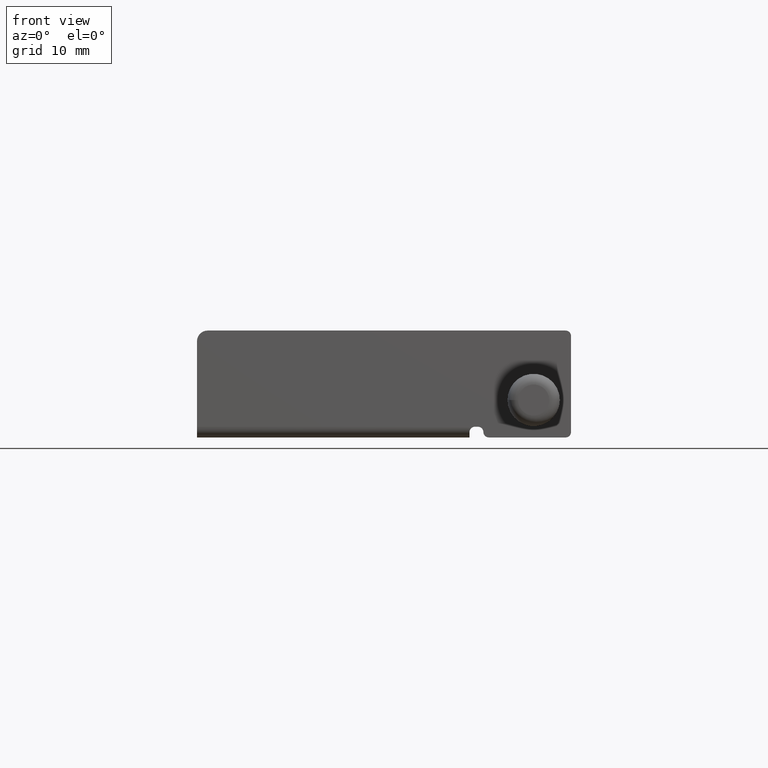
[diagram: clean part render]
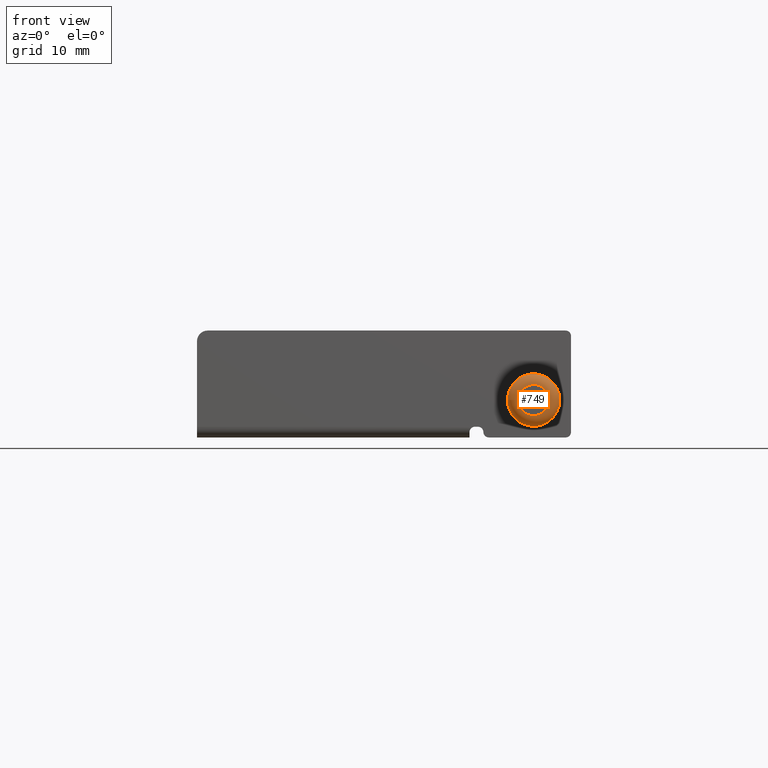
[diagram: same view with one face highlighted and labeled with its STEP entity id]
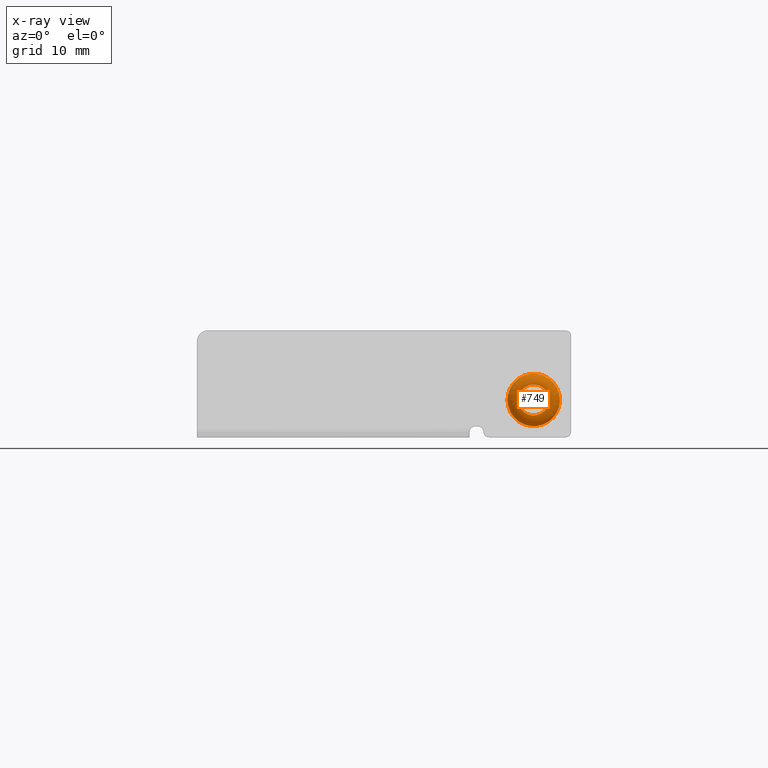
[diagram: x-ray of the same camera — body ghosted, the highlighted face saturated]
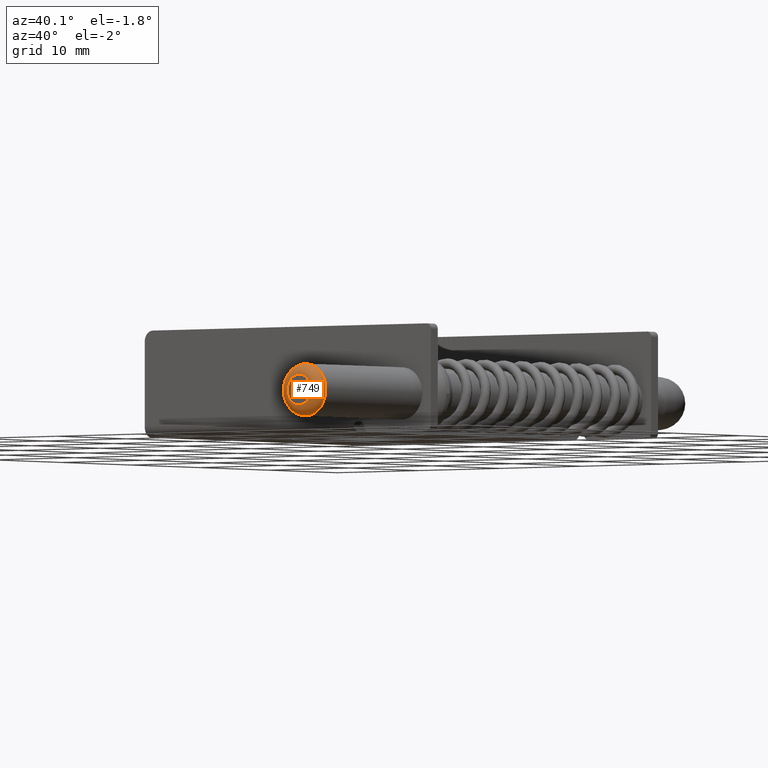
[diagram: same view with one face highlighted and labeled with its STEP entity id]
A machine part, front view. The second image highlights one B-rep face of the part: STEP entity #749.
The next image is the same camera in x-ray: the body ghosted, the highlighted face saturated — about 0% of this face is hidden behind the body in this view.
A second angle (auxiliary view) of the same face is appended — the face is thin or edge-on in the first view.
In plain terms, the highlighted toroidal blend (fillet) surface has major radius 1.45 mm and minor (blend) radius 1 mm.
Its self-contained STEP definition (entity closure, byte-faithful):
#12=TOROIDAL_SURFACE('',#831,1.45,1.);
#164=FACE_BOUND('',#261,.T.);
#205=FACE_OUTER_BOUND('',#260,.T.);
#260=EDGE_LOOP('',(#671));
#261=EDGE_LOOP('',(#672));
#313=CIRCLE('',#832,2.45);
#314=CIRCLE('',#833,1.45);
#384=VERTEX_POINT('',#1287);
#385=VERTEX_POINT('',#1289);
#483=EDGE_CURVE('',#384,#384,#313,.T.);
#484=EDGE_CURVE('',#385,#385,#314,.T.);
#671=ORIENTED_EDGE('',*,*,#483,.T.);
#672=ORIENTED_EDGE('',*,*,#484,.T.);
#749=ADVANCED_FACE('',(#205,#164),#12,.T.);
#831=AXIS2_PLACEMENT_3D('',#1286,#1040,#1041);
#832=AXIS2_PLACEMENT_3D('',#1288,#1042,#1043);
#833=AXIS2_PLACEMENT_3D('',#1290,#1044,#1045);
#1040=DIRECTION('center_axis',(0.,-1.,0.));
#1041=DIRECTION('ref_axis',(0.,0.,-1.));
#1042=DIRECTION('center_axis',(0.,-1.,0.));
#1043=DIRECTION('ref_axis',(1.,0.,0.));
#1044=DIRECTION('center_axis',(0.,1.,0.));
#1045=DIRECTION('ref_axis',(1.,0.,0.));
#1286=CARTESIAN_POINT('Origin',(14.,-30.5,3.5));
#1287=CARTESIAN_POINT('',(11.55,-30.5,3.5));
#1288=CARTESIAN_POINT('Origin',(14.,-30.5,3.5));
#1289=CARTESIAN_POINT('',(12.55,-31.5,3.5));
#1290=CARTESIAN_POINT('Origin',(14.,-31.5,3.5));